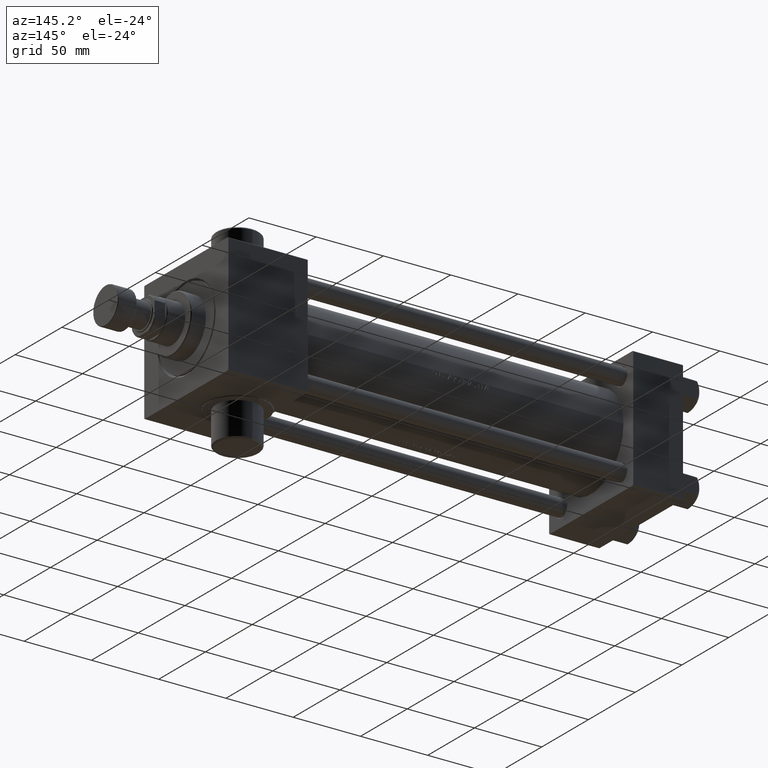
[diagram: clean part render]
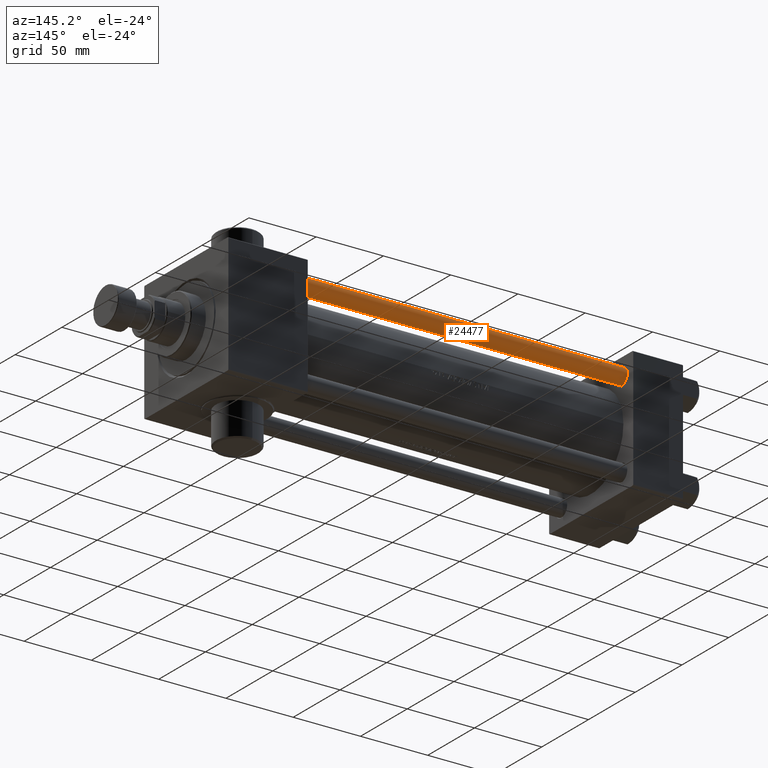
[diagram: same view with one face highlighted and labeled with its STEP entity id]
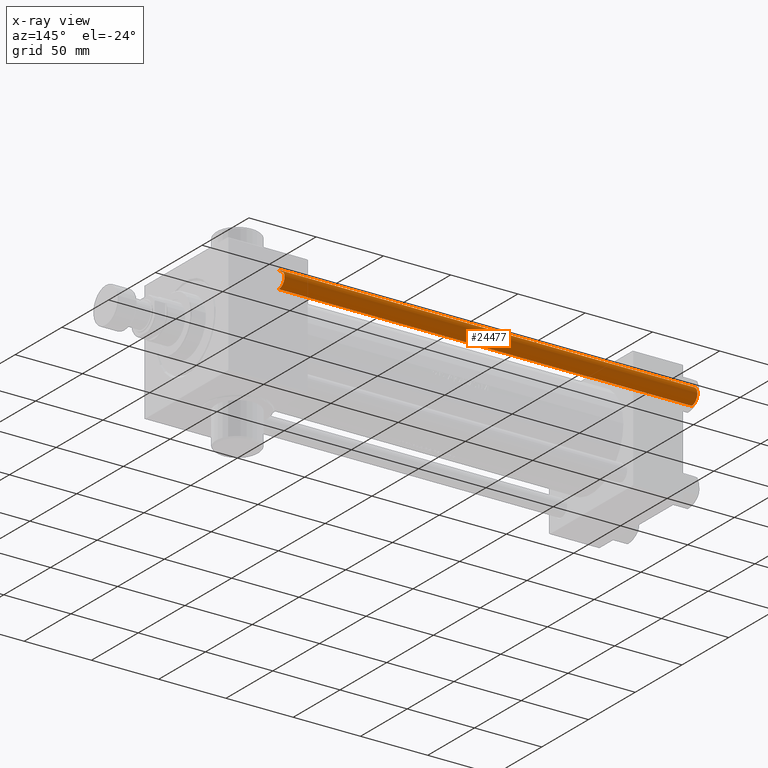
[diagram: x-ray of the same camera — body ghosted, the highlighted face saturated]
A machine part, auxiliary view. The second image highlights one B-rep face of the part: STEP entity #24477.
The next image is the same camera in x-ray: the body ghosted, the highlighted face saturated — about 0% of this face is hidden behind the body in this view.
In plain terms, the highlighted cylindrical surface (edge-blend (fillet) strip) has radius 6 mm, axis along (1, -0, 0).
Its self-contained STEP definition (entity closure, byte-faithful):
#359 = VECTOR ( 'NONE', #14930, 1000.000000000000000 ) ;
#1991 = EDGE_LOOP ( 'NONE', ( #31265, #12437, #36159, #11153 ) ) ;
#2449 = VERTEX_POINT ( 'NONE', #35275 ) ;
#3502 = CIRCLE ( 'NONE', #9604, 6.000000000000000888 ) ;
#4148 = CARTESIAN_POINT ( 'NONE',  ( 6.000000000000000888, 7.347880794884120722E-16, 308.0000000000000000 ) ) ;
#4289 = AXIS2_PLACEMENT_3D ( 'NONE', #14160, #40086, #18199 ) ;
#6121 = EDGE_CURVE ( 'NONE', #2449, #38048, #44206, .T. ) ;
#9604 = AXIS2_PLACEMENT_3D ( 'NONE', #32722, #14406, #28687 ) ;
#10043 = EDGE_CURVE ( 'NONE', #12371, #38048, #23289, .T. ) ;
#11153 = ORIENTED_EDGE ( 'NONE', *, *, #6121, .F. ) ;
#12167 = VECTOR ( 'NONE', #22948, 1000.000000000000000 ) ;
#12371 = VERTEX_POINT ( 'NONE', #19132 ) ;
#12437 = ORIENTED_EDGE ( 'NONE', *, *, #22535, .T. ) ;
#12520 = DIRECTION ( 'NONE',  ( -0.000000000000000000, -0.000000000000000000, -1.000000000000000000 ) ) ;
#14160 = CARTESIAN_POINT ( 'NONE',  ( 0.000000000000000000, 0.000000000000000000, 0.5000000000000559552 ) ) ;
#14406 = DIRECTION ( 'NONE',  ( 0.000000000000000000, 0.000000000000000000, -1.000000000000000000 ) ) ;
#14930 = DIRECTION ( 'NONE',  ( -0.000000000000000000, -0.000000000000000000, -1.000000000000000000 ) ) ;
#17161 = VERTEX_POINT ( 'NONE', #30606 ) ;
#18199 = DIRECTION ( 'NONE',  ( 1.000000000000000000, 0.000000000000000000, 0.000000000000000000 ) ) ;
#19132 = CARTESIAN_POINT ( 'NONE',  ( 6.000000000000000888, 7.347880794884120722E-16, 0.5000000000000559552 ) ) ;
#19905 = FACE_OUTER_BOUND ( 'NONE', #1991, .T. ) ;
#22535 = EDGE_CURVE ( 'NONE', #17161, #12371, #43658, .T. ) ;
#22948 = DIRECTION ( 'NONE',  ( -0.000000000000000000, -0.000000000000000000, -1.000000000000000000 ) ) ;
#23289 = CIRCLE ( 'NONE', #4289, 6.000000000000000888 ) ;
#24477 = ADVANCED_FACE ( 'NONE', ( #19905 ), #34902, .T. ) ;
#26823 = CARTESIAN_POINT ( 'NONE',  ( -6.000000000000000888, 0.000000000000000000, 308.0000000000000000 ) ) ;
#28687 = DIRECTION ( 'NONE',  ( 1.000000000000000000, 0.000000000000000000, 0.000000000000000000 ) ) ;
#30606 = CARTESIAN_POINT ( 'NONE',  ( 6.000000000000000888, 7.347880794884120722E-16, 307.4999999999999432 ) ) ;
#31265 = ORIENTED_EDGE ( 'NONE', *, *, #34418, .T. ) ;
#32722 = CARTESIAN_POINT ( 'NONE',  ( 0.000000000000000000, 0.000000000000000000, 307.4999999999999432 ) ) ;
#34418 = EDGE_CURVE ( 'NONE', #2449, #17161, #3502, .T. ) ;
#34427 = DIRECTION ( 'NONE',  ( -1.000000000000000000, 0.000000000000000000, 0.000000000000000000 ) ) ;
#34902 = CYLINDRICAL_SURFACE ( 'NONE', #40331, 6.000000000000000888 ) ;
#35275 = CARTESIAN_POINT ( 'NONE',  ( -6.000000000000000888, 0.000000000000000000, 307.4999999999999432 ) ) ;
#36159 = ORIENTED_EDGE ( 'NONE', *, *, #10043, .T. ) ;
#36604 = CARTESIAN_POINT ( 'NONE',  ( -6.000000000000000888, 0.000000000000000000, 0.5000000000000559552 ) ) ;
#38004 = CARTESIAN_POINT ( 'NONE',  ( 0.000000000000000000, 0.000000000000000000, 308.0000000000000000 ) ) ;
#38048 = VERTEX_POINT ( 'NONE', #36604 ) ;
#40086 = DIRECTION ( 'NONE',  ( -0.000000000000000000, -0.000000000000000000, 1.000000000000000000 ) ) ;
#40331 = AXIS2_PLACEMENT_3D ( 'NONE', #38004, #12520, #34427 ) ;
#43658 = LINE ( 'NONE', #4148, #12167 ) ;
#44206 = LINE ( 'NONE', #26823, #359 ) ;